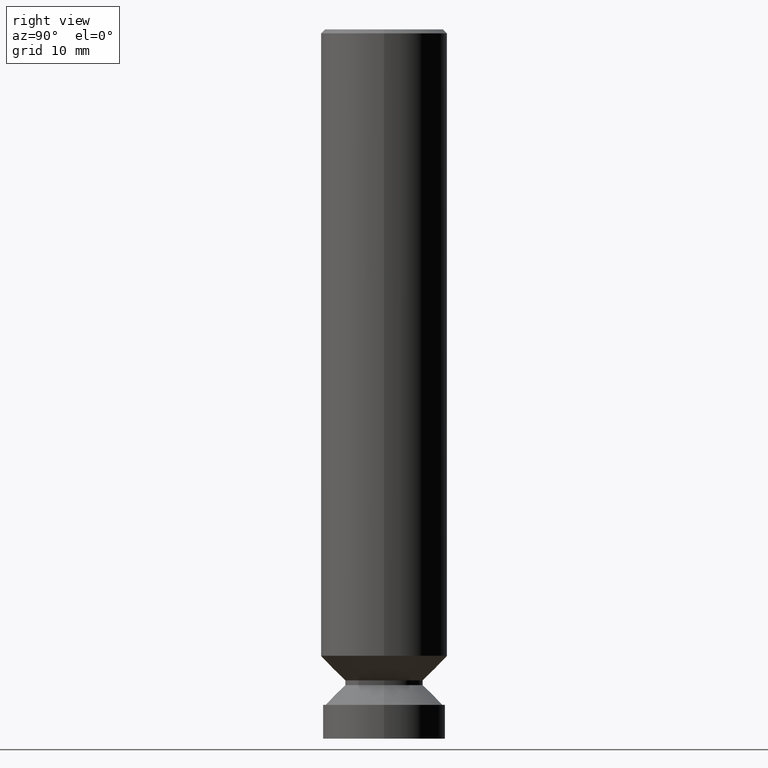
[diagram: clean part render]
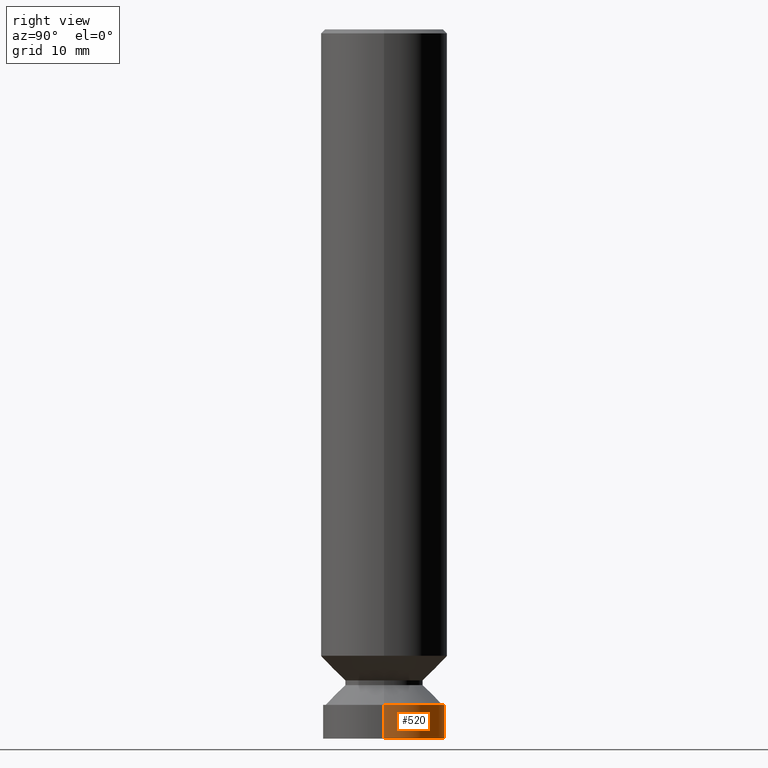
[diagram: same view with one face highlighted and labeled with its STEP entity id]
A machine part, right view. The second image highlights one B-rep face of the part: STEP entity #520.
In plain terms, the highlighted cylindrical surface (partial cylindrical patch) has radius 7.6835 mm, axis along (-0, 0, 1).
Its self-contained STEP definition (entity closure, byte-faithful):
#34 = CARTESIAN_POINT ( 'NONE',  ( -0.3025000000000004352, -9.779254218483265549E-15, -3.499999999999980016 ) ) ;
#73 = CARTESIAN_POINT ( 'NONE',  ( -0.3025000000000002132, 2.149391775674304577E-15, -1.487977864802109852E-29 ) ) ;
#96 = VECTOR ( 'NONE', #647, 39.37007874015748143 ) ;
#117 = DIRECTION ( 'NONE',  ( -2.445468806185136597E-29, 3.491481338843145583E-15, 1.000000000000000000 ) ) ;
#162 = EDGE_CURVE ( 'NONE', #722, #606, #351, .T. ) ;
#171 = CARTESIAN_POINT ( 'NONE',  ( 8.150747531015059748E-29, -1.163710730236420348E-14, -3.332999999999999741 ) ) ;
#176 = EDGE_CURVE ( 'NONE', #289, #722, #506, .T. ) ;
#179 = AXIS2_PLACEMENT_3D ( 'NONE', #332, #692, #497 ) ;
#182 = DIRECTION ( 'NONE',  ( 1.000000000000000000, -6.982962677686267499E-15, 0.000000000000000000 ) ) ;
#189 = AXIS2_PLACEMENT_3D ( 'NONE', #171, #737, #182 ) ;
#235 = ORIENTED_EDGE ( 'NONE', *, *, #176, .F. ) ;
#289 = VERTEX_POINT ( 'NONE', #818 ) ;
#306 = ORIENTED_EDGE ( 'NONE', *, *, #669, .T. ) ;
#323 = DIRECTION ( 'NONE',  ( -2.445468806185136877E-29, 3.491481338843145188E-15, 1.000000000000000000 ) ) ;
#327 = AXIS2_PLACEMENT_3D ( 'NONE', #816, #117, #625 ) ;
#332 = CARTESIAN_POINT ( 'NONE',  ( 8.559140821647929884E-29, -1.222018468595094150E-14, -3.499999999999980016 ) ) ;
#338 = ORIENTED_EDGE ( 'NONE', *, *, #162, .F. ) ;
#351 = CIRCLE ( 'NONE', #189, 0.3024999999999999911 ) ;
#367 = FACE_OUTER_BOUND ( 'NONE', #546, .T. ) ;
#497 = DIRECTION ( 'NONE',  ( 1.000000000000000000, -6.982962677686269866E-15, 0.000000000000000000 ) ) ;
#506 = LINE ( 'NONE', #710, #96 ) ;
#520 = ADVANCED_FACE ( 'NONE', ( #367 ), #558, .T. ) ;
#546 = EDGE_LOOP ( 'NONE', ( #784, #306, #338, #235 ) ) ;
#558 = CYLINDRICAL_SURFACE ( 'NONE', #327, 0.3025000000000002132 ) ;
#572 = CARTESIAN_POINT ( 'NONE',  ( -0.3024999999999999911, -9.779254218483268704E-15, -3.332999999999999741 ) ) ;
#577 = LINE ( 'NONE', #73, #724 ) ;
#589 = CIRCLE ( 'NONE', #179, 0.3025000000000004352 ) ;
#606 = VERTEX_POINT ( 'NONE', #572 ) ;
#625 = DIRECTION ( 'NONE',  ( 1.000000000000000000, -6.982962677686265922E-15, 4.876176775795935232E-29 ) ) ;
#645 = EDGE_CURVE ( 'NONE', #289, #742, #589, .T. ) ;
#647 = DIRECTION ( 'NONE',  ( -2.445468806185136877E-29, 3.491481338843145188E-15, 1.000000000000000000 ) ) ;
#669 = EDGE_CURVE ( 'NONE', #742, #606, #577, .T. ) ;
#692 = DIRECTION ( 'NONE',  ( -2.445468806185136597E-29, 3.491481338843145583E-15, 1.000000000000000000 ) ) ;
#710 = CARTESIAN_POINT ( 'NONE',  ( 0.3025000000000002132, -2.112346210000097021E-15, 1.475043474678271390E-29 ) ) ;
#722 = VERTEX_POINT ( 'NONE', #727 ) ;
#724 = VECTOR ( 'NONE', #323, 39.37007874015748143 ) ;
#727 = CARTESIAN_POINT ( 'NONE',  ( 0.3024999999999999911, -1.374945351236429853E-14, -3.332999999999999741 ) ) ;
#737 = DIRECTION ( 'NONE',  ( -2.445468806185136597E-29, 3.491481338843145583E-15, 1.000000000000000000 ) ) ;
#742 = VERTEX_POINT ( 'NONE', #34 ) ;
#784 = ORIENTED_EDGE ( 'NONE', *, *, #645, .T. ) ;
#816 = CARTESIAN_POINT ( 'NONE',  ( 0.000000000000000000, 0.000000000000000000, 0.000000000000000000 ) ) ;
#818 = CARTESIAN_POINT ( 'NONE',  ( 0.3025000000000004352, -1.433253089595104128E-14, -3.499999999999980016 ) ) ;